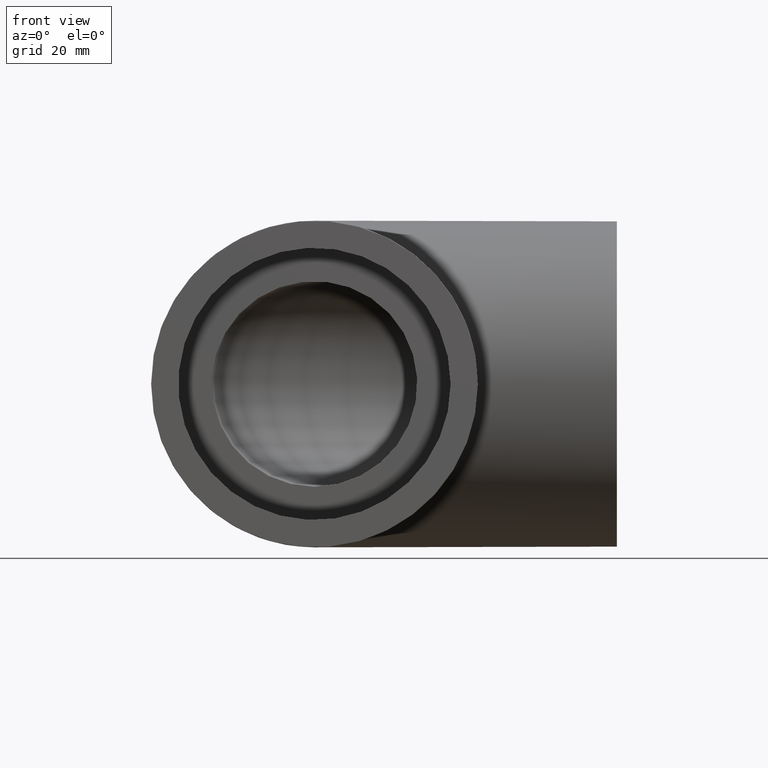
[diagram: clean part render]
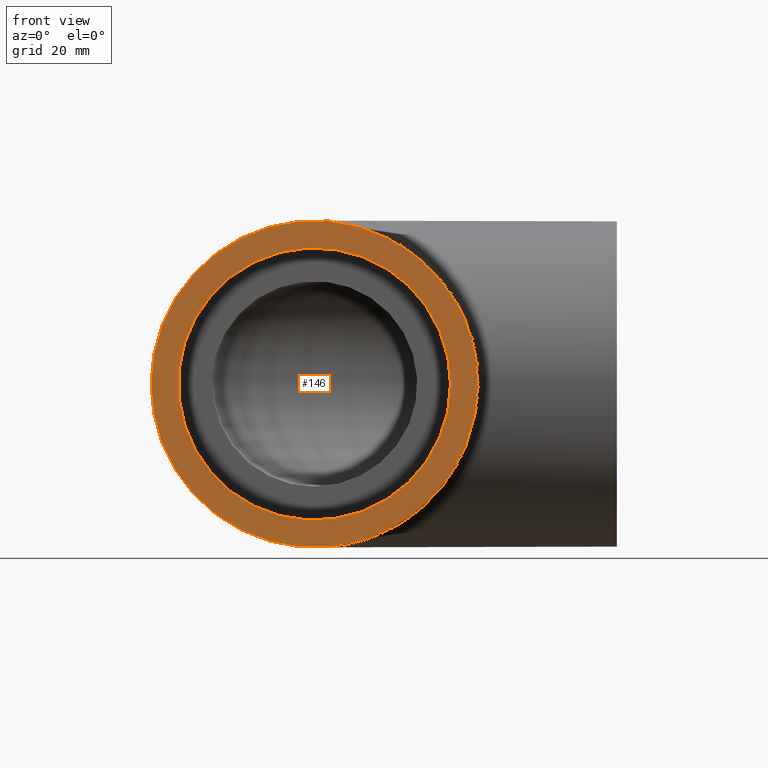
[diagram: same view with one face highlighted and labeled with its STEP entity id]
A machine part, front view. The second image highlights one B-rep face of the part: STEP entity #146.
In plain terms, the highlighted planar face has unit normal (0, -1, 0).
Its self-contained STEP definition (entity closure, byte-faithful):
#19=PLANE('',#172);
#30=FACE_BOUND('',#63,.T.);
#42=FACE_OUTER_BOUND('',#62,.T.);
#62=EDGE_LOOP('',(#124));
#63=EDGE_LOOP('',(#125));
#73=CIRCLE('',#160,45.);
#78=CIRCLE('',#170,54.);
#85=VERTEX_POINT('',#243);
#90=VERTEX_POINT('',#258);
#97=EDGE_CURVE('',#85,#85,#73,.T.);
#102=EDGE_CURVE('',#90,#90,#78,.T.);
#124=ORIENTED_EDGE('',*,*,#102,.F.);
#125=ORIENTED_EDGE('',*,*,#97,.T.);
#146=ADVANCED_FACE('',(#42,#30),#19,.T.);
#160=AXIS2_PLACEMENT_3D('',#244,#196,#197);
#170=AXIS2_PLACEMENT_3D('',#259,#216,#217);
#172=AXIS2_PLACEMENT_3D('',#261,#220,#221);
#196=DIRECTION('center_axis',(-1.22464679914735E-16,1.,0.));
#197=DIRECTION('ref_axis',(-1.,-1.7415263131375E-16,0.));
#216=DIRECTION('center_axis',(-1.22464679914735E-16,1.,0.));
#217=DIRECTION('ref_axis',(1.,1.22464679914735E-16,0.));
#220=DIRECTION('center_axis',(1.22464679914735E-16,-1.,0.));
#221=DIRECTION('ref_axis',(0.,0.,-1.));
#243=CARTESIAN_POINT('',(45.,-98.,5.51091059616309E-15));
#244=CARTESIAN_POINT('Origin',(1.20015386316441E-14,-98.,0.));
#258=CARTESIAN_POINT('',(-54.,-98.,0.));
#259=CARTESIAN_POINT('Origin',(1.20015386316441E-14,-98.,0.));
#261=CARTESIAN_POINT('Origin',(-54.,-98.,0.));